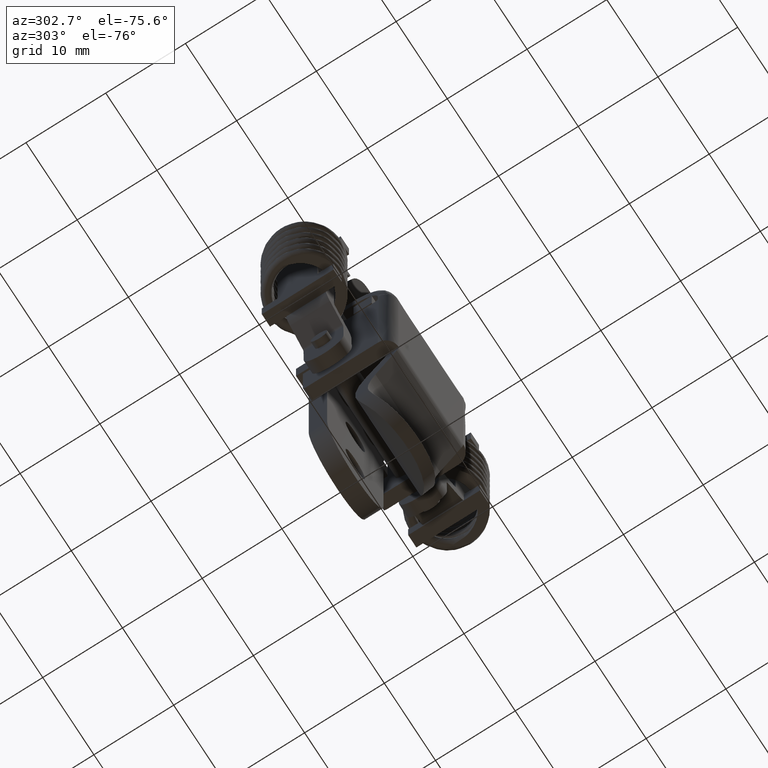
[diagram: clean part render]
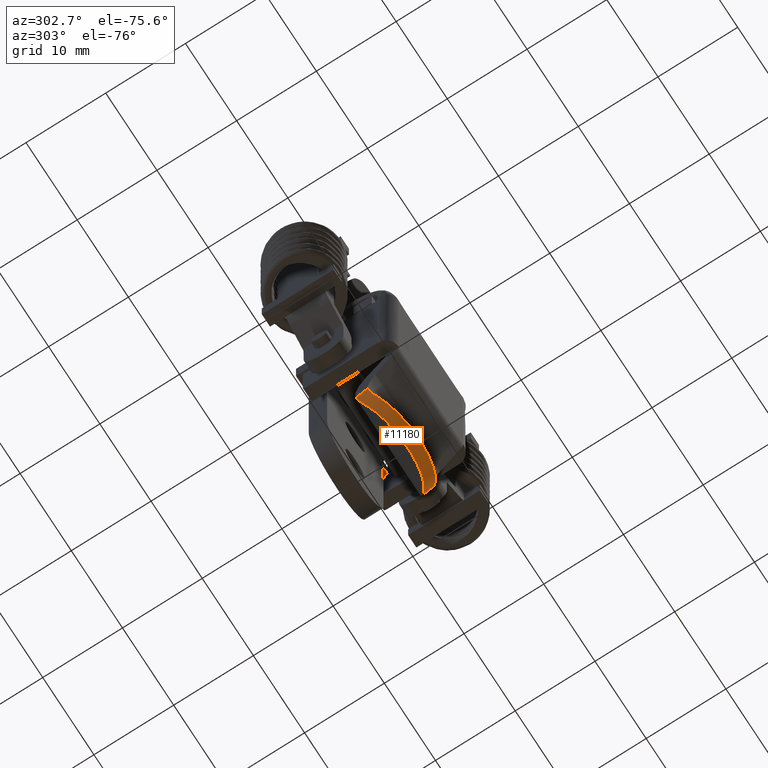
[diagram: same view with one face highlighted and labeled with its STEP entity id]
A machine part, auxiliary view. The second image highlights one B-rep face of the part: STEP entity #11180.
In plain terms, the highlighted face is a freeform B-spline surface patch.
Its self-contained STEP definition (entity closure, byte-faithful):
#11042=CARTESIAN_POINT('',(-4.834131379649410,6.299760115304266,-47.668875554555122));
#11043=CARTESIAN_POINT('',(-2.759764431833360,6.299760115304266,-48.760262119613849));
#11044=CARTESIAN_POINT('',(-7.871631115778381,6.356690645174781,-53.442163643626309));
#11045=CARTESIAN_POINT('',(-5.797264167962331,6.356690645174785,-54.533550208685043));
#11046=CARTESIAN_POINT('',(-7.792115614493924,-0.164914774339586,-53.291030825077620));
#11047=CARTESIAN_POINT('',(-5.717748666677875,-0.164914774339586,-54.382417390136347));
#11048=CARTESIAN_POINT('',(-7.712600113209464,-6.686520193853959,-53.139898006528938));
#11049=CARTESIAN_POINT('',(-5.638233165393413,-6.686520193853959,-54.231284571587686));
#11050=CARTESIAN_POINT('',(-4.680650479030238,-6.288249230057772,-47.377158836062911));
#11051=CARTESIAN_POINT('',(-2.606283531214188,-6.288249230057772,-48.468545401121652));
#11059=(BOUNDED_SURFACE()B_SPLINE_SURFACE(1,2,((#11042,#11044,#11046,#11048,#11050),(#11043,#11045,#11047,#11049,#11051)),.UNSPECIFIED.,.F.,.F.,.U.)B_SPLINE_SURFACE_WITH_KNOTS((2,2),(3,2,3),(0.0,2.343954536372747),(0.0,10.696765368482030,21.393530736964060),.UNSPECIFIED.)GEOMETRIC_REPRESENTATION_ITEM()RATIONAL_B_SPLINE_SURFACE(((1.0,0.694658370458997,1.0,0.694658370458997,1.0),(1.0,0.694658370458997,1.0,0.694658370458997,1.0)))REPRESENTATION_ITEM('')SURFACE());
#11060=CARTESIAN_POINT('',(-5.621000000000100,-5.571504150016859,-50.640000000000001));
#11061=VERTEX_POINT('',#11060);
#11062=CARTESIAN_POINT('',(-4.810369413056921,-6.300000000000000,-47.743499519621302));
#11063=VERTEX_POINT('',#11062);
#11064=CARTESIAN_POINT('',(-5.621000000000100,-5.571504150016859,-50.640000000000001));
#11065=CARTESIAN_POINT('',(-5.510954761653648,-5.695031020030866,-50.433455701123862));
#11066=CARTESIAN_POINT('',(-5.409031940779052,-5.802299468140073,-50.217233104597007));
#11067=CARTESIAN_POINT('',(-5.224609689855980,-5.985857307345466,-49.764776877647947));
#11068=CARTESIAN_POINT('',(-5.142090061758580,-6.062140463639180,-49.528548808512561));
#11069=CARTESIAN_POINT('',(-5.053435545737962,-6.138281051995959,-49.219878872364319));
#11070=CARTESIAN_POINT('',(-5.036415972075877,-6.152557057284215,-49.157396430228360));
#11071=CARTESIAN_POINT('',(-5.004173755034029,-6.178957249246631,-49.032175546579253));
#11072=CARTESIAN_POINT('',(-4.958391569476301,-6.215429839892442,-48.843584408248581));
#11073=CARTESIAN_POINT('',(-4.920385128170355,-6.242831240193089,-48.652742277155859));
#11074=CARTESIAN_POINT('',(-4.854898927715417,-6.286234691017795,-48.268105927488463));
#11075=CARTESIAN_POINT('',(-4.825244616058271,-6.300000000000001,-48.007753988535590));
#11076=CARTESIAN_POINT('',(-4.810369413056921,-6.300000000000000,-47.743499519621302));
#11077=B_SPLINE_CURVE_WITH_KNOTS('',3,(#11064,#11065,#11066,#11067,#11068,#11069,#11070,#11071,#11072,#11073,#11074,#11075,#11076),.UNSPECIFIED.,.F.,.U.,(4,2,2,2,1,2,4),(0.0,0.250000000000010,0.500000000000019,0.562500000000017,0.625000000000015,0.750000000000010,1.0),.UNSPECIFIED.);
#11078=EDGE_CURVE('',#11061,#11063,#11077,.T.);
#11079=ORIENTED_EDGE('',*,*,#11078,.F.);
#11080=CARTESIAN_POINT('',(-5.621000000000100,5.571504150016840,-50.640000000000001));
#11081=VERTEX_POINT('',#11080);
#11082=CARTESIAN_POINT('',(-5.621000000000099,5.571504150016841,-50.639999999999972));
#11083=CARTESIAN_POINT('',(-7.200569817000874,3.798421385195942,-53.604700202213472));
#11084=CARTESIAN_POINT('',(-7.200569817000874,9.080134E-015,-53.604700202213472));
#11085=CARTESIAN_POINT('',(-7.200569817000874,-3.798421385195937,-53.604700202213472));
#11086=CARTESIAN_POINT('',(-5.621000000000117,-5.571504150016845,-50.639999999999993));
#11094=(BOUNDED_CURVE()B_SPLINE_CURVE(2,(#11082,#11083,#11084,#11085,#11086),.UNSPECIFIED.,.F.,.U.)B_SPLINE_CURVE_WITH_KNOTS((3,2,3),(0.0,0.500000000000000,1.0),.UNSPECIFIED.)CURVE()GEOMETRIC_REPRESENTATION_ITEM()RATIONAL_B_SPLINE_CURVE((1.0,0.856386199598657,1.0,0.856386199598657,1.0))REPRESENTATION_ITEM(''));
#11095=EDGE_CURVE('',#11081,#11061,#11094,.T.);
#11096=ORIENTED_EDGE('',*,*,#11095,.F.);
#11097=CARTESIAN_POINT('',(-4.810369413056921,6.300000000000000,-47.743499519621302));
#11098=VERTEX_POINT('',#11097);
#11099=CARTESIAN_POINT('',(-4.810369413056921,6.300000000000000,-47.743499519621302));
#11100=CARTESIAN_POINT('',(-4.825242536619240,6.300000000000003,-48.007717047792219));
#11101=CARTESIAN_POINT('',(-4.854869558376283,6.286236272251789,-48.267671593299639));
#11102=CARTESIAN_POINT('',(-4.941846419019689,6.228624762754389,-48.779056842432539));
#11103=CARTESIAN_POINT('',(-4.999204415392814,6.184796698349787,-49.030488513719440));
#11104=CARTESIAN_POINT('',(-5.087684917014234,6.108880625426434,-49.339262816493203));
#11105=CARTESIAN_POINT('',(-5.106248328644218,6.092612014190112,-49.400811630650637));
#11106=CARTESIAN_POINT('',(-5.144696751732694,6.058200662824253,-49.522280260217443));
#11107=CARTESIAN_POINT('',(-5.204455265515475,6.003685841248849,-49.702422068877411));
#11108=CARTESIAN_POINT('',(-5.270174050394796,5.940497504534273,-49.876511066051179));
#11109=CARTESIAN_POINT('',(-5.408848790937744,5.802499653813437,-50.216887257256893));
#11110=CARTESIAN_POINT('',(-5.510938138441901,5.695049679750691,-50.433424500958672));
#11111=CARTESIAN_POINT('',(-5.621000000000090,5.571504150016859,-50.640000000000001));
#11112=B_SPLINE_CURVE_WITH_KNOTS('',3,(#11099,#11100,#11101,#11102,#11103,#11104,#11105,#11106,#11107,#11108,#11109,#11110,#11111),.UNSPECIFIED.,.F.,.U.,(4,2,2,2,1,2,4),(0.0,0.250000000000010,0.500000000000019,0.562500000000018,0.625000000000018,0.750000000000010,1.0),.UNSPECIFIED.);
#11113=EDGE_CURVE('',#11098,#11081,#11112,.T.);
#11114=ORIENTED_EDGE('',*,*,#11113,.F.);
#11115=CARTESIAN_POINT('',(-3.283650800035020,6.300000000000000,-48.546751897235403));
#11116=VERTEX_POINT('',#11115);
#11117=CARTESIAN_POINT('',(-3.283650800035020,6.300000000000000,-48.546751897235403));
#11118=CARTESIAN_POINT('',(-4.810369413056921,6.300000000000000,-47.743499519621302));
#11119=QUASI_UNIFORM_CURVE('',1,(#11117,#11118),.UNSPECIFIED.,.F.,.U.);
#11120=EDGE_CURVE('',#11116,#11098,#11119,.T.);
#11121=ORIENTED_EDGE('',*,*,#11120,.F.);
#11122=CARTESIAN_POINT('',(-4.209000000000000,5.567243773099740,-51.392000000000003));
#11123=VERTEX_POINT('',#11122);
#11124=CARTESIAN_POINT('',(-4.209000000000000,5.567243773099740,-51.392000000000003));
#11125=CARTESIAN_POINT('',(-4.099980144908136,5.690109737714369,-51.187250329294123));
#11126=CARTESIAN_POINT('',(-3.996962484143927,5.797065620105241,-50.973829538286722));
#11127=CARTESIAN_POINT('',(-3.805472892213296,5.980570554895376,-50.529144598358272));
#11128=CARTESIAN_POINT('',(-3.716988584572358,6.057114529691956,-50.297883592218518));
#11129=CARTESIAN_POINT('',(-3.597238106038665,6.149206634351274,-49.936786550611622));
#11130=CARTESIAN_POINT('',(-3.559375151777827,6.176170126808919,-49.813606749439863));
#11131=CARTESIAN_POINT('',(-3.489283104112605,6.221852761140492,-49.565669008393712));
#11132=CARTESIAN_POINT('',(-3.456957871477868,6.240661053950343,-49.440688129181659));
#11133=CARTESIAN_POINT('',(-3.368272165083353,6.285507069354040,-49.062734353842409));
#11134=CARTESIAN_POINT('',(-3.320185256696174,6.299999999999998,-48.806757421483169));
#11135=CARTESIAN_POINT('',(-3.283650800035020,6.300000000000000,-48.546751897235403));
#11136=B_SPLINE_CURVE_WITH_KNOTS('',3,(#11124,#11125,#11126,#11127,#11128,#11129,#11130,#11131,#11132,#11133,#11134,#11135),.UNSPECIFIED.,.F.,.U.,(4,2,2,2,2,4),(0.0,0.250000000000003,0.500000000000006,0.625000000000005,0.750000000000003,1.0),.UNSPECIFIED.);
#11137=EDGE_CURVE('',#11123,#11116,#11136,.T.);
#11138=ORIENTED_EDGE('',*,*,#11137,.F.);
#11139=CARTESIAN_POINT('',(-4.209000000000000,-5.567243773099700,-51.392000000000003));
#11140=VERTEX_POINT('',#11139);
#11141=CARTESIAN_POINT('',(-4.209000000000034,-5.567243773099716,-51.391999999999982));
#11142=CARTESIAN_POINT('',(-5.783999999999990,-3.792210279384518,-54.350000000000016));
#11143=CARTESIAN_POINT('',(-5.783999999999990,-1.204720E-014,-54.350000000000023));
#11144=CARTESIAN_POINT('',(-5.783999999999990,3.792210279384495,-54.350000000000016));
#11145=CARTESIAN_POINT('',(-4.209000000000034,5.567243773099693,-51.391999999999989));
#11153=(BOUNDED_CURVE()B_SPLINE_CURVE(2,(#11141,#11142,#11143,#11144,#11145),.UNSPECIFIED.,.F.,.U.)B_SPLINE_CURVE_WITH_KNOTS((3,2,3),(0.0,0.500000000000000,1.0),.UNSPECIFIED.)CURVE()GEOMETRIC_REPRESENTATION_ITEM()RATIONAL_B_SPLINE_CURVE((1.0,0.856759474341205,1.0,0.856759474341205,1.0))REPRESENTATION_ITEM(''));
#11154=EDGE_CURVE('',#11140,#11123,#11153,.T.);
#11155=ORIENTED_EDGE('',*,*,#11154,.F.);
#11156=CARTESIAN_POINT('',(-3.283650800035020,-6.300000000000000,-48.546751897235403));
#11157=VERTEX_POINT('',#11156);
#11158=CARTESIAN_POINT('',(-3.283650800035020,-6.300000000000000,-48.546751897235403));
#11159=CARTESIAN_POINT('',(-3.320176788773138,-6.299999999999998,-48.806697157639952));
#11160=CARTESIAN_POINT('',(-3.368136890847287,-6.285510691900595,-49.061821797387140));
#11161=CARTESIAN_POINT('',(-3.485488667315838,-6.226297927023934,-49.562611167016541));
#11162=CARTESIAN_POINT('',(-3.554886054947209,-6.181585102689521,-49.808275953788417));
#11163=CARTESIAN_POINT('',(-3.674322108771538,-6.090017612181408,-50.169607822043702));
#11164=CARTESIAN_POINT('',(-3.716858662499530,-6.055249740474745,-50.289255863961003));
#11165=CARTESIAN_POINT('',(-3.805721367804488,-5.978181977921386,-50.523005372465221));
#11166=CARTESIAN_POINT('',(-3.852108535058014,-5.935851530413216,-50.637356497556951));
#11167=CARTESIAN_POINT('',(-3.996573652063844,-5.797493368032329,-50.973098593636330));
#11168=CARTESIAN_POINT('',(-4.099952302425077,-5.690141116342938,-51.187198038459293));
#11169=CARTESIAN_POINT('',(-4.209000000000000,-5.567243773099750,-51.392000000000003));
#11170=B_SPLINE_CURVE_WITH_KNOTS('',3,(#11158,#11159,#11160,#11161,#11162,#11163,#11164,#11165,#11166,#11167,#11168,#11169),.UNSPECIFIED.,.F.,.U.,(4,2,2,2,2,4),(0.0,0.249999999999997,0.499999999999994,0.624999999999995,0.749999999999997,1.0),.UNSPECIFIED.);
#11171=EDGE_CURVE('',#11157,#11140,#11170,.T.);
#11172=ORIENTED_EDGE('',*,*,#11171,.F.);
#11173=CARTESIAN_POINT('',(-4.810369413056921,-6.300000000000000,-47.743499519621302));
#11174=CARTESIAN_POINT('',(-3.283650800035020,-6.300000000000000,-48.546751897235403));
#11175=QUASI_UNIFORM_CURVE('',1,(#11173,#11174),.UNSPECIFIED.,.F.,.U.);
#11176=EDGE_CURVE('',#11063,#11157,#11175,.T.);
#11177=ORIENTED_EDGE('',*,*,#11176,.F.);
#11178=EDGE_LOOP('',(#11079,#11096,#11114,#11121,#11138,#11155,#11172,#11177));
#11179=FACE_OUTER_BOUND('',#11178,.T.);
#11180=ADVANCED_FACE('',(#11179),#11059,.T.);